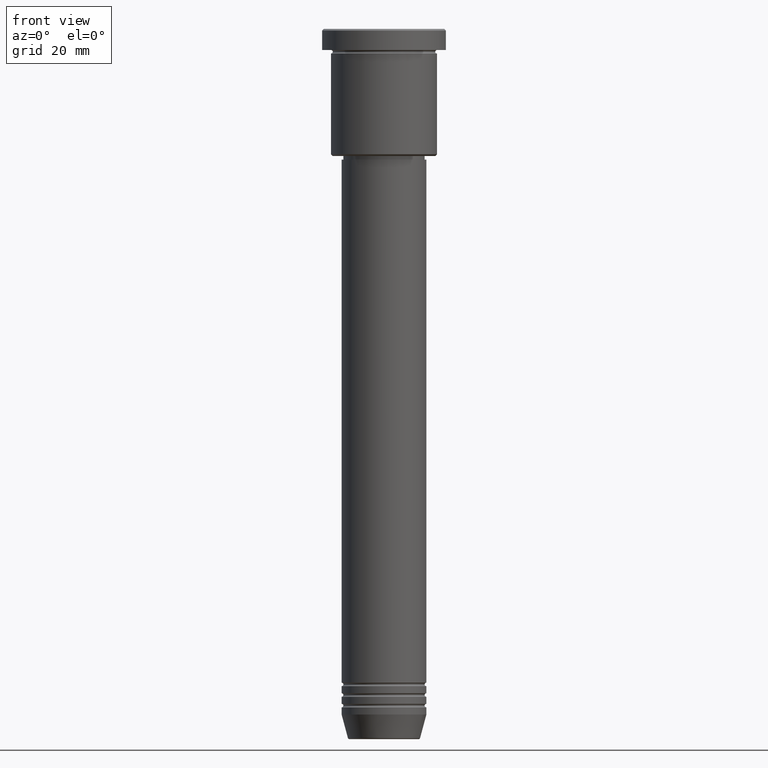
[diagram: clean part render]
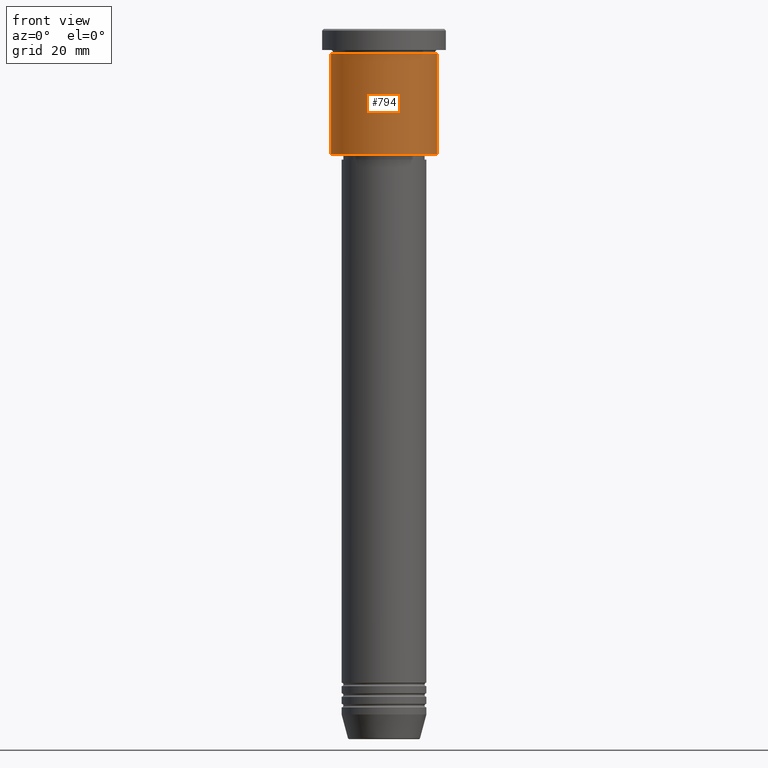
[diagram: same view with one face highlighted and labeled with its STEP entity id]
A machine part, front view. The second image highlights one B-rep face of the part: STEP entity #794.
In plain terms, the highlighted cylindrical surface (partial cylindrical patch) has radius 15 mm, axis along (-0, -0, 1).
Its self-contained STEP definition (entity closure, byte-faithful):
#30 = CIRCLE ( 'NONE', #369, 15.00000000000000000 ) ;
#31 = ORIENTED_EDGE ( 'NONE', *, *, #988, .F. ) ;
#93 = EDGE_CURVE ( 'NONE', #1010, #952, #833, .T. ) ;
#113 = CARTESIAN_POINT ( 'NONE',  ( -15.00000000000000000, 1.836970198721029589E-15, 0.000000000000000000 ) ) ;
#119 = VERTEX_POINT ( 'NONE', #1112 ) ;
#166 = EDGE_CURVE ( 'NONE', #427, #1010, #30, .T. ) ;
#221 = DIRECTION ( 'NONE',  ( -0.000000000000000000, -0.000000000000000000, 1.000000000000000000 ) ) ;
#280 = VECTOR ( 'NONE', #847, 1000.000000000000000 ) ;
#287 = CARTESIAN_POINT ( 'NONE',  ( 15.00000000000000000, 0.000000000000000000, -6.999999999999995559 ) ) ;
#318 = AXIS2_PLACEMENT_3D ( 'NONE', #1031, #221, #937 ) ;
#358 = DIRECTION ( 'NONE',  ( -0.000000000000000000, -0.000000000000000000, 1.000000000000000000 ) ) ;
#369 = AXIS2_PLACEMENT_3D ( 'NONE', #1148, #682, #1063 ) ;
#384 = LINE ( 'NONE', #113, #280 ) ;
#416 = CARTESIAN_POINT ( 'NONE',  ( 15.00000000000000000, 0.000000000000000000, -35.50000000000004263 ) ) ;
#427 = VERTEX_POINT ( 'NONE', #527 ) ;
#432 = ORIENTED_EDGE ( 'NONE', *, *, #542, .F. ) ;
#468 = ORIENTED_EDGE ( 'NONE', *, *, #93, .T. ) ;
#475 = ORIENTED_EDGE ( 'NONE', *, *, #166, .T. ) ;
#486 = CIRCLE ( 'NONE', #318, 15.00000000000000000 ) ;
#527 = CARTESIAN_POINT ( 'NONE',  ( -15.00000000000000000, 1.836970198721029589E-15, -35.50000000000004263 ) ) ;
#542 = EDGE_CURVE ( 'NONE', #427, #119, #384, .T. ) ;
#561 = EDGE_LOOP ( 'NONE', ( #432, #475, #468, #31 ) ) ;
#577 = DIRECTION ( 'NONE',  ( -0.000000000000000000, -0.000000000000000000, 1.000000000000000000 ) ) ;
#682 = DIRECTION ( 'NONE',  ( -0.000000000000000000, -0.000000000000000000, 1.000000000000000000 ) ) ;
#728 = DIRECTION ( 'NONE',  ( 1.000000000000000000, 0.000000000000000000, 0.000000000000000000 ) ) ;
#732 = CARTESIAN_POINT ( 'NONE',  ( 0.000000000000000000, 0.000000000000000000, 0.000000000000000000 ) ) ;
#749 = CARTESIAN_POINT ( 'NONE',  ( 15.00000000000000000, 0.000000000000000000, 0.000000000000000000 ) ) ;
#794 = ADVANCED_FACE ( 'NONE', ( #1174 ), #980, .T. ) ;
#829 = VECTOR ( 'NONE', #577, 1000.000000000000000 ) ;
#833 = LINE ( 'NONE', #749, #829 ) ;
#847 = DIRECTION ( 'NONE',  ( -0.000000000000000000, -0.000000000000000000, 1.000000000000000000 ) ) ;
#937 = DIRECTION ( 'NONE',  ( 1.000000000000000000, 0.000000000000000000, 0.000000000000000000 ) ) ;
#952 = VERTEX_POINT ( 'NONE', #287 ) ;
#961 = AXIS2_PLACEMENT_3D ( 'NONE', #732, #358, #728 ) ;
#980 = CYLINDRICAL_SURFACE ( 'NONE', #961, 15.00000000000000000 ) ;
#988 = EDGE_CURVE ( 'NONE', #119, #952, #486, .T. ) ;
#1010 = VERTEX_POINT ( 'NONE', #416 ) ;
#1031 = CARTESIAN_POINT ( 'NONE',  ( 0.000000000000000000, 0.000000000000000000, -6.999999999999995559 ) ) ;
#1063 = DIRECTION ( 'NONE',  ( -1.000000000000000000, 0.000000000000000000, 0.000000000000000000 ) ) ;
#1112 = CARTESIAN_POINT ( 'NONE',  ( -15.00000000000000000, 1.836970198721029589E-15, -6.999999999999995559 ) ) ;
#1148 = CARTESIAN_POINT ( 'NONE',  ( 0.000000000000000000, 0.000000000000000000, -35.50000000000004263 ) ) ;
#1174 = FACE_OUTER_BOUND ( 'NONE', #561, .T. ) ;